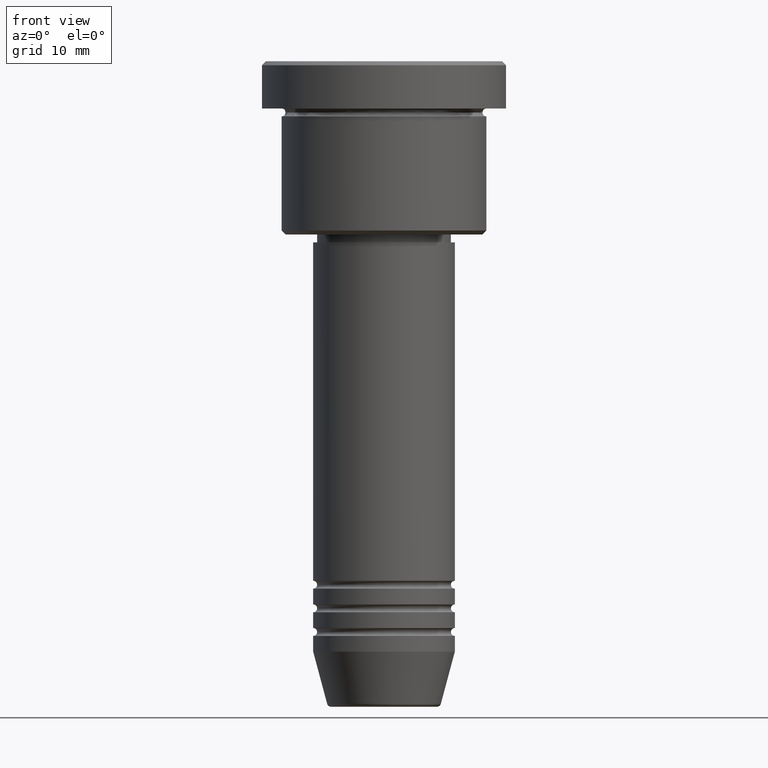
[diagram: clean part render]
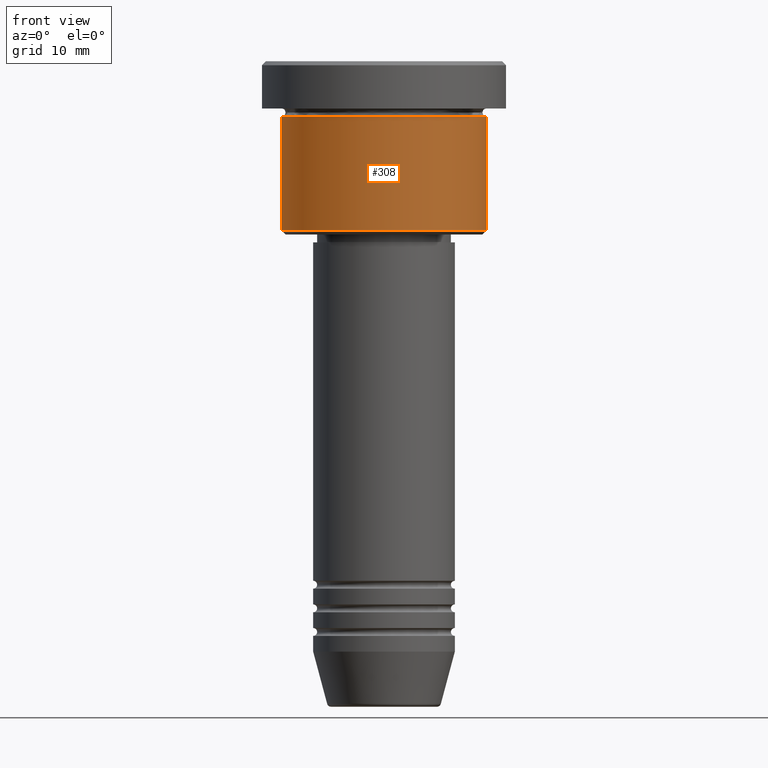
[diagram: same view with one face highlighted and labeled with its STEP entity id]
A machine part, front view. The second image highlights one B-rep face of the part: STEP entity #308.
In plain terms, the highlighted cylindrical surface (partial cylindrical patch) has radius 13 mm, axis along (-0, -0, 1).
Its self-contained STEP definition (entity closure, byte-faithful):
#39 = LINE ( 'NONE', #863, #128 ) ;
#58 = CARTESIAN_POINT ( 'NONE',  ( 13.00000000000000000, 0.000000000000000000, 0.000000000000000000 ) ) ;
#62 = DIRECTION ( 'NONE',  ( 1.000000000000000000, 0.000000000000000000, 0.000000000000000000 ) ) ;
#128 = VECTOR ( 'NONE', #421, 1000.000000000000000 ) ;
#176 = AXIS2_PLACEMENT_3D ( 'NONE', #910, #1165, #722 ) ;
#189 = EDGE_CURVE ( 'NONE', #606, #982, #39, .T. ) ;
#201 = DIRECTION ( 'NONE',  ( -0.000000000000000000, -0.000000000000000000, 1.000000000000000000 ) ) ;
#246 = CARTESIAN_POINT ( 'NONE',  ( 0.000000000000000000, 0.000000000000000000, 0.000000000000000000 ) ) ;
#287 = EDGE_CURVE ( 'NONE', #548, #874, #535, .T. ) ;
#308 = ADVANCED_FACE ( 'NONE', ( #405 ), #345, .T. ) ;
#345 = CYLINDRICAL_SURFACE ( 'NONE', #858, 13.00000000000000000 ) ;
#354 = DIRECTION ( 'NONE',  ( -0.000000000000000000, -0.000000000000000000, 1.000000000000000000 ) ) ;
#405 = FACE_OUTER_BOUND ( 'NONE', #867, .T. ) ;
#421 = DIRECTION ( 'NONE',  ( -0.000000000000000000, -0.000000000000000000, 1.000000000000000000 ) ) ;
#466 = CARTESIAN_POINT ( 'NONE',  ( -13.00000000000000000, 1.592040838891559095E-15, -21.50000000000000000 ) ) ;
#521 = ORIENTED_EDGE ( 'NONE', *, *, #189, .F. ) ;
#535 = LINE ( 'NONE', #58, #569 ) ;
#548 = VERTEX_POINT ( 'NONE', #916 ) ;
#563 = DIRECTION ( 'NONE',  ( -1.000000000000000000, 0.000000000000000000, 0.000000000000000000 ) ) ;
#564 = ORIENTED_EDGE ( 'NONE', *, *, #834, .F. ) ;
#569 = VECTOR ( 'NONE', #354, 1000.000000000000000 ) ;
#606 = VERTEX_POINT ( 'NONE', #466 ) ;
#722 = DIRECTION ( 'NONE',  ( 1.000000000000000000, 0.000000000000000000, 0.000000000000000000 ) ) ;
#729 = AXIS2_PLACEMENT_3D ( 'NONE', #1012, #201, #563 ) ;
#748 = ORIENTED_EDGE ( 'NONE', *, *, #1032, .T. ) ;
#809 = CIRCLE ( 'NONE', #729, 13.00000000000000000 ) ;
#834 = EDGE_CURVE ( 'NONE', #982, #874, #1112, .T. ) ;
#858 = AXIS2_PLACEMENT_3D ( 'NONE', #246, #888, #62 ) ;
#863 = CARTESIAN_POINT ( 'NONE',  ( -13.00000000000000000, 1.592040838891559095E-15, 0.000000000000000000 ) ) ;
#867 = EDGE_LOOP ( 'NONE', ( #521, #748, #930, #564 ) ) ;
#874 = VERTEX_POINT ( 'NONE', #999 ) ;
#888 = DIRECTION ( 'NONE',  ( -0.000000000000000000, -0.000000000000000000, 1.000000000000000000 ) ) ;
#910 = CARTESIAN_POINT ( 'NONE',  ( 0.000000000000000000, 0.000000000000000000, -6.999999999999995559 ) ) ;
#916 = CARTESIAN_POINT ( 'NONE',  ( 13.00000000000000000, 0.000000000000000000, -21.50000000000000000 ) ) ;
#930 = ORIENTED_EDGE ( 'NONE', *, *, #287, .T. ) ;
#982 = VERTEX_POINT ( 'NONE', #1015 ) ;
#999 = CARTESIAN_POINT ( 'NONE',  ( 13.00000000000000000, 0.000000000000000000, -6.999999999999995559 ) ) ;
#1012 = CARTESIAN_POINT ( 'NONE',  ( 0.000000000000000000, 0.000000000000000000, -21.50000000000000000 ) ) ;
#1015 = CARTESIAN_POINT ( 'NONE',  ( -13.00000000000000000, 1.592040838891559095E-15, -6.999999999999995559 ) ) ;
#1032 = EDGE_CURVE ( 'NONE', #606, #548, #809, .T. ) ;
#1112 = CIRCLE ( 'NONE', #176, 13.00000000000000000 ) ;
#1165 = DIRECTION ( 'NONE',  ( -0.000000000000000000, -0.000000000000000000, 1.000000000000000000 ) ) ;